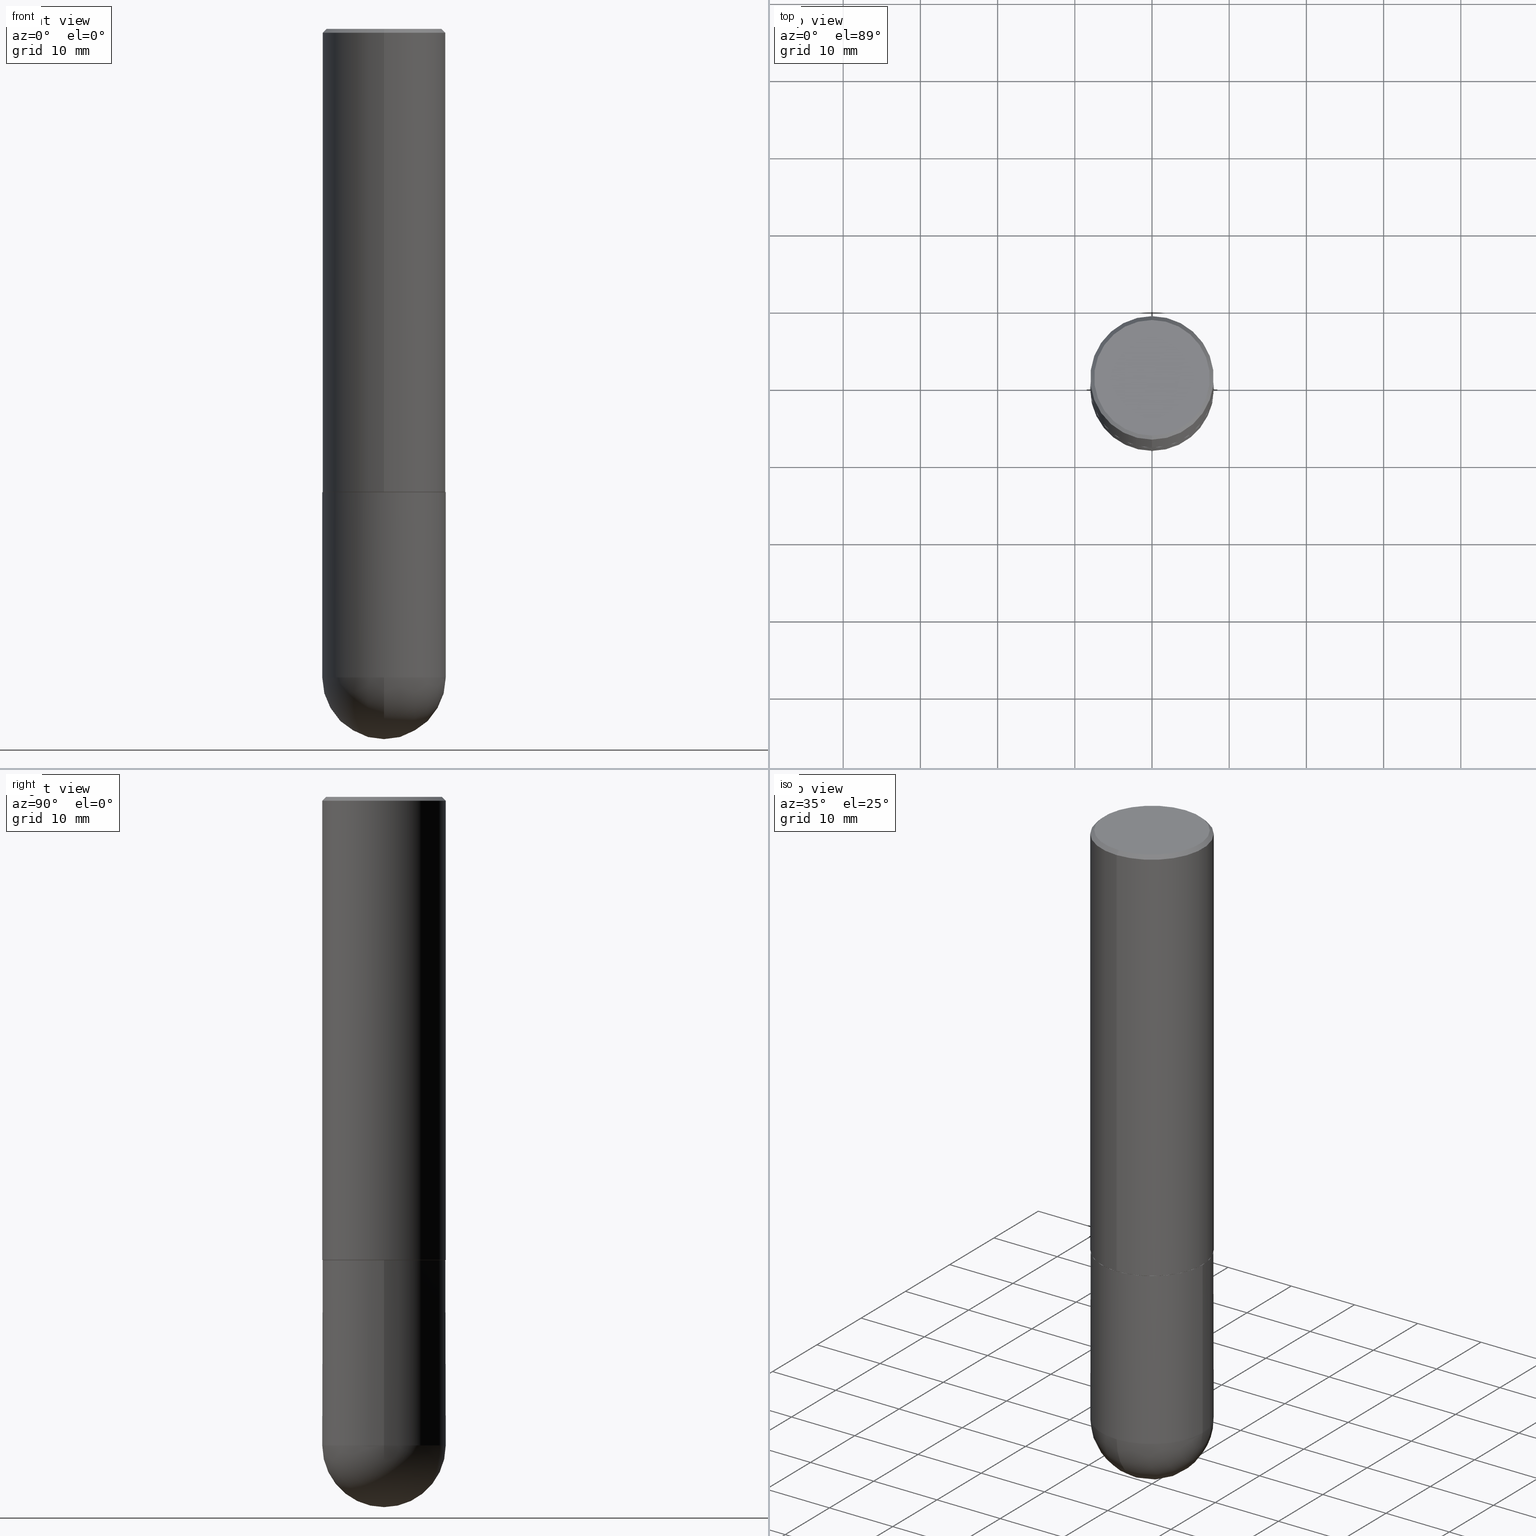
[diagram: canonical four-view strip — front | top / right | iso, engineering-drawing reading convention]
A machine part, canonical four-view strip (front | top / right | iso — engineering-drawing reading convention). The complete STEP part file that produces these views, byte-faithful:
ISO-10303-21;
HEADER;
FILE_DESCRIPTION (( 'STEP AP203' ),
    '1' );
FILE_NAME ('44578.STEP',
    '2024-04-10T11:46:05',
    ( '' ),
    ( '' ),
    'SwSTEP 2.0',
    'SolidWorks 2023',
    '' );
FILE_SCHEMA (( 'CONFIG_CONTROL_DESIGN' ));
ENDSEC;

DATA;
#1 = LENGTH_MEASURE_WITH_UNIT ( LENGTH_MEASURE( 0.02539999999999999897 ), #345 );
#2 = ADVANCED_FACE ( 'NONE', ( #8 ), #313, .T. ) ;
#3 = AXIS2_PLACEMENT_3D ( 'NONE', #151, #307, #120 ) ;
#4 = ORIENTED_EDGE ( 'NONE', *, *, #403, .T. ) ;
#5 = EDGE_CURVE ( 'NONE', #315, #9, #264, .T. ) ;
#6 = CARTESIAN_POINT ( 'NONE',  ( 7.756167837580670108E-29, -1.202068572976127498E-14, -3.307049999999999823 ) ) ;
#7 = VECTOR ( 'NONE', #119, 39.37007874015748143 ) ;
#8 = FACE_OUTER_BOUND ( 'NONE', #49, .T. ) ;
#9 = VERTEX_POINT ( 'NONE', #318 ) ;
#10 = DIRECTION ( 'NONE',  ( -6.982962677686264344E-15, -1.000000000000000000, 3.490676443567537462E-15 ) ) ;
#11 = CARTESIAN_POINT ( 'NONE',  ( -2.199284095337290265E-15, -0.3149500000000001743, 1.099388545901596591E-15 ) ) ;
#12 = EDGE_LOOP ( 'NONE', ( #291, #46 ) ) ;
#13 = DIRECTION ( 'NONE',  ( -6.982962677686265922E-15, -1.000000000000000000, 3.469564049740290009E-15 ) ) ;
#14 = AXIS2_PLACEMENT_3D ( 'NONE', #296, #85, #354 ) ;
#15 = DIRECTION ( 'NONE',  ( -2.445468806185136597E-29, 3.491481338843145583E-15, 1.000000000000000000 ) ) ;
#16 = VERTEX_POINT ( 'NONE', #195 ) ;
#17 = DIRECTION ( 'NONE',  ( -2.445468806185136877E-29, 3.491481338843145188E-15, 1.000000000000000000 ) ) ;
#18 = ORIENTED_EDGE ( 'NONE', *, *, #234, .F. ) ;
#19 = VECTOR ( 'NONE', #107, 39.37007874015748143 ) ;
#20 = ADVANCED_FACE ( 'NONE', ( #169 ), #106, .T. ) ;
#21 = SPHERICAL_SURFACE ( 'NONE', #135, 0.3149500000000001743 ) ;
#22 = CALENDAR_DATE ( 2024, 10, 4 ) ;
#23 = MECHANICAL_CONTEXT ( 'NONE', #329, 'mechanical' ) ;
#24 = CARTESIAN_POINT ( 'NONE',  ( 0.000000000000000000, 0.000000000000000000, 0.000000000000000000 ) ) ;
#25 = AXIS2_PLACEMENT_3D ( 'NONE', #174, #394, #306 ) ;
#26 = CARTESIAN_POINT ( 'NONE',  ( 4.892061723104093615E-31, -6.981352887135100316E-17, -0.02000000000000007327 ) ) ;
#27 = APPLICATION_PROTOCOL_DEFINITION ( 'international standard', 'config_control_design', 1994, #235 ) ;
#28 = CARTESIAN_POINT ( 'NONE',  ( -2.237854346276355915E-15, -0.3149500000000118871, -3.307049999999999379 ) ) ;
#29 = FACE_OUTER_BOUND ( 'NONE', #400, .T. ) ;
#30 = DIRECTION ( 'NONE',  ( -6.982962677686265922E-15, -1.000000000000000000, 3.496670018878889100E-15 ) ) ;
#31 = CARTESIAN_POINT ( 'NONE',  ( 0.000000000000000000, 0.000000000000000000, 0.000000000000000000 ) ) ;
#32 = ADVANCED_FACE ( 'NONE', ( #29 ), #92, .F. ) ;
#33 = CC_DESIGN_PERSON_AND_ORGANIZATION_ASSIGNMENT ( #412, #251, ( #276 ) ) ;
#34 = DIRECTION ( 'NONE',  ( 2.446030861552038119E-29, -3.490676443567537857E-15, -1.000000000000000000 ) ) ;
#35 = SECURITY_CLASSIFICATION ( '', '', #316 ) ;
#36 = ADVANCED_FACE ( 'NONE', ( #191 ), #158, .F. ) ;
#37 = ORIENTED_EDGE ( 'NONE', *, *, #198, .F. ) ;
#38 = CARTESIAN_POINT ( 'NONE',  ( 2.230748918918892169E-15, 0.3139499999999917912, -2.362200000000000966 ) ) ;
#39 = CIRCLE ( 'NONE', #133, 0.2949499999999998234 ) ;
#40 = CARTESIAN_POINT ( 'NONE',  ( 2.059624841783562880E-15, 0.2949499999999998234, -9.379207004238558873E-16 ) ) ;
#41 = VERTEX_POINT ( 'NONE', #130 ) ;
#42 = DIRECTION ( 'NONE',  ( -2.446030861552038119E-29, 3.490676443567537857E-15, 1.000000000000000000 ) ) ;
#43 = DIRECTION ( 'NONE',  ( 1.000000000000000000, -6.982962677686266711E-15, 4.876176775795936353E-29 ) ) ;
#44 = MANIFOLD_SOLID_BREP ( 'Body-Move/Copy2[1]', #298 ) ;
#45 = DIRECTION ( 'NONE',  ( -6.982962677686265922E-15, -1.000000000000000000, 3.496670018878889100E-15 ) ) ;
#46 = ORIENTED_EDGE ( 'NONE', *, *, #281, .T. ) ;
#47 = CC_DESIGN_APPROVAL ( #189, ( #35 ) ) ;
#48 = CARTESIAN_POINT ( 'NONE',  ( 2.129454468560426573E-15, 0.2949499999999998234, -8.462663838174674313E-16 ) ) ;
#49 = EDGE_LOOP ( 'NONE', ( #348, #241, #356, #208 ) ) ;
#50 = EDGE_CURVE ( 'NONE', #68, #315, #310, .T. ) ;
#51 = CC_DESIGN_PERSON_AND_ORGANIZATION_ASSIGNMENT ( #284, #293, ( #373 ) ) ;
#52 = PERSON ( 'UNSPECIFIED', 'UNSPECIFIED', 'UNSPECIFIED', ('UNSPECIFIED'), ('UNSPECIFIED'), ('UNSPECIFIED') ) ;
#53 = CIRCLE ( 'NONE', #67, 0.3149500000000001743 ) ;
#54 = CARTESIAN_POINT ( 'NONE',  ( 0.000000000000000000, 0.000000000000000000, 0.000000000000000000 ) ) ;
#55 =( NAMED_UNIT ( * ) SI_UNIT ( $, .STERADIAN. ) SOLID_ANGLE_UNIT ( ) );
#56 = AXIS2_PLACEMENT_3D ( 'NONE', #54, #125, #391 ) ;
#57 = DIRECTION ( 'NONE',  ( 1.000000000000000000, -6.982962677686269866E-15, 0.000000000000000000 ) ) ;
#58 = AXIS2_PLACEMENT_3D ( 'NONE', #65, #322, #102 ) ;
#59 = ORIENTED_EDGE ( 'NONE', *, *, #60, .F. ) ;
#60 = EDGE_CURVE ( 'NONE', #197, #262, #124, .T. ) ;
#61 = DIRECTION ( 'NONE',  ( -1.000000000000000000, 6.982962677686265922E-15, -4.876176775795935793E-29 ) ) ;
#62 = CALENDAR_DATE ( 2024, 10, 4 ) ;
#63 = FACE_OUTER_BOUND ( 'NONE', #246, .T. ) ;
#64 = DIRECTION ( 'NONE',  ( -2.446030861552038119E-29, 3.490676443567537857E-15, 1.000000000000000000 ) ) ;
#65 = CARTESIAN_POINT ( 'NONE',  ( 0.000000000000000000, 0.000000000000000000, 0.000000000000000000 ) ) ;
#66 = DIRECTION ( 'NONE',  ( -6.982962677686266711E-15, -1.000000000000000000, 3.480615376543096131E-15 ) ) ;
#67 = AXIS2_PLACEMENT_3D ( 'NONE', #265, #111, #325 ) ;
#68 = VERTEX_POINT ( 'NONE', #411 ) ;
#69 = DIRECTION ( 'NONE',  ( 6.982962677686265922E-15, 1.000000000000000000, -3.496670018878889100E-15 ) ) ;
#70 = SPHERICAL_SURFACE ( 'NONE', #204, 0.3149500000000001743 ) ;
#71 = ORIENTED_EDGE ( 'NONE', *, *, #132, .F. ) ;
#72 = LINE ( 'NONE', #38, #286 ) ;
#73 = EDGE_LOOP ( 'NONE', ( #305, #171, #101, #393 ) ) ;
#74 = ORIENTED_EDGE ( 'NONE', *, *, #364, .F. ) ;
#75 = ORIENTED_EDGE ( 'NONE', *, *, #50, .T. ) ;
#76 = FACE_OUTER_BOUND ( 'NONE', #116, .T. ) ;
#77 = FACE_OUTER_BOUND ( 'NONE', #230, .T. ) ;
#78 = ORIENTED_EDGE ( 'NONE', *, *, #175, .F. ) ;
#79 = AXIS2_PLACEMENT_3D ( 'NONE', #252, #283, #66 ) ;
#80 = CARTESIAN_POINT ( 'NONE',  ( 0.3149500000000000077, -2.199284095337289871E-15, 1.535751875536930130E-29 ) ) ;
#81 = DIRECTION ( 'NONE',  ( 2.446030861552037839E-29, -3.490676443567537857E-15, -1.000000000000000000 ) ) ;
#82 = EDGE_CURVE ( 'NONE', #144, #149, #210, .T. ) ;
#83 = ORIENTED_EDGE ( 'NONE', *, *, #377, .F. ) ;
#84 = DIRECTION ( 'NONE',  ( -2.446030861552038119E-29, 3.490676443567537857E-15, 1.000000000000000000 ) ) ;
#85 = DIRECTION ( 'NONE',  ( -2.445468806185136597E-29, 3.491481338843145583E-15, 1.000000000000000000 ) ) ;
#86 = CARTESIAN_POINT ( 'NONE',  ( 2.199284095337289871E-15, 0.3149499999999999522, -0.02000000000000117309 ) ) ;
#87 = PRODUCT_RELATED_PRODUCT_CATEGORY ( 'detail', '', ( #373 ) ) ;
#88 = DIRECTION ( 'NONE',  ( -2.446030861552038119E-29, 3.490676443567537857E-15, 1.000000000000000000 ) ) ;
#89 = ORIENTED_EDGE ( 'NONE', *, *, #225, .T. ) ;
#90 = CARTESIAN_POINT ( 'NONE',  ( 5.778014101158225206E-29, -8.245675894995239481E-15, -2.362200000000000077 ) ) ;
#91 = ADVANCED_FACE ( 'NONE', ( #223 ), #21, .T. ) ;
#92 = PLANE ( 'NONE',  #221 ) ;
#93 = PERSON_AND_ORGANIZATION ( #52, #336 ) ;
#94 = CARTESIAN_POINT ( 'NONE',  ( 2.237854346276435985E-15, 0.3149500000000001743, -1.099388545901596591E-15 ) ) ;
#95 = DIRECTION ( 'NONE',  ( -2.446030861552038119E-29, 3.490676443567537857E-15, 1.000000000000000000 ) ) ;
#96 = APPROVAL_STATUS ( 'not_yet_approved' ) ;
#97 = ADVANCED_FACE ( 'NONE', ( #63 ), #404, .T. ) ;
#98 = AXIS2_PLACEMENT_3D ( 'NONE', #368, #206, #45 ) ;
#99 = CARTESIAN_POINT ( 'NONE',  ( 7.756167837580670108E-29, -1.202068572976127498E-14, -3.307049999999999823 ) ) ;
#100 = COORDINATED_UNIVERSAL_TIME_OFFSET ( 5, 0, .BEHIND. ) ;
#101 = ORIENTED_EDGE ( 'NONE', *, *, #132, .T. ) ;
#102 = DIRECTION ( 'NONE',  ( -6.982962677686264344E-15, -1.000000000000000000, 3.490676443567537462E-15 ) ) ;
#103 = PERSON_AND_ORGANIZATION ( #52, #336 ) ;
#104 = ADVANCED_FACE ( 'NONE', ( #76 ), #285, .T. ) ;
#105 = FACE_OUTER_BOUND ( 'NONE', #389, .T. ) ;
#106 = CYLINDRICAL_SURFACE ( 'NONE', #58, 0.3149500000000001743 ) ;
#107 = DIRECTION ( 'NONE',  ( -4.851104656540956386E-15, -0.7071067811865489050, -0.7071067811865461294 ) ) ;
#108 = AXIS2_PLACEMENT_3D ( 'NONE', #229, #231, #69 ) ;
#109 = SHAPE_DEFINITION_REPRESENTATION ( #309, #183 ) ;
#110 = APPROVAL_PERSON_ORGANIZATION ( #167, #194, #290 ) ;
#111 = DIRECTION ( 'NONE',  ( 1.000000000000000000, -6.982962677686265922E-15, 4.883557194083112340E-29 ) ) ;
#112 = ORIENTED_EDGE ( 'NONE', *, *, #148, .F. ) ;
#113 = CARTESIAN_POINT ( 'NONE',  ( -2.160713844398143363E-15, -0.3149500000000000632, -0.01999999999999896999 ) ) ;
#114 = PLANE ( 'NONE',  #237 ) ;
#115 = CC_DESIGN_APPROVAL ( #194, ( #276 ) ) ;
#116 = EDGE_LOOP ( 'NONE', ( #152, #211, #397, #89 ) ) ;
#117 = CARTESIAN_POINT ( 'NONE',  ( -2.192301132659546270E-15, -0.3139500000000083335, -2.362199999999998745 ) ) ;
#118 = ORIENTED_EDGE ( 'NONE', *, *, #395, .T. ) ;
#119 = DIRECTION ( 'NONE',  ( 4.937700262164540154E-15, 0.7071067811865440200, -0.7071067811865510144 ) ) ;
#120 = DIRECTION ( 'NONE',  ( -6.982962677686265922E-15, -1.000000000000000000, 3.469564049740290009E-15 ) ) ;
#121 = EDGE_LOOP ( 'NONE', ( #180, #118, #18, #355 ) ) ;
#122 = DIRECTION ( 'NONE',  ( -2.446030861552038119E-29, 3.490676443567537857E-15, 1.000000000000000000 ) ) ;
#123 = CONICAL_SURFACE ( 'NONE', #257, 0.3139500000000000624, 0.7853981633973801113 ) ;
#124 = CIRCLE ( 'NONE', #401, 0.3149500000000000077 ) ;
#125 = DIRECTION ( 'NONE',  ( -2.445468806185136597E-29, 3.491481338843145583E-15, 1.000000000000000000 ) ) ;
#126 = DATE_TIME_ROLE ( 'classification_date' ) ;
#127 = AXIS2_PLACEMENT_3D ( 'NONE', #24, #64, #10 ) ;
#128 = AXIS2_PLACEMENT_3D ( 'NONE', #371, #213, #245 ) ;
#129 =( CONVERSION_BASED_UNIT ( 'INCH', #1 ) LENGTH_UNIT ( ) NAMED_UNIT ( #185 ) );
#130 = CARTESIAN_POINT ( 'NONE',  ( 2.237854346276465567E-15, 0.3149499999999920141, -2.361200000000000632 ) ) ;
#131 = DATE_AND_TIME ( #62, #339 ) ;
#132 = EDGE_CURVE ( 'NONE', #201, #197, #263, .T. ) ;
#133 = AXIS2_PLACEMENT_3D ( 'NONE', #145, #84, #153 ) ;
#134 = LOCAL_TIME ( 7, 46, 5.000000000000000000, #200 ) ;
#135 = AXIS2_PLACEMENT_3D ( 'NONE', #219, #166, #292 ) ;
#136 = ORIENTED_EDGE ( 'NONE', *, *, #281, .F. ) ;
#137 = AXIS2_PLACEMENT_3D ( 'NONE', #268, #34, #138 ) ;
#138 = DIRECTION ( 'NONE',  ( 6.982962677686265922E-15, 1.000000000000000000, -3.496670018878889100E-15 ) ) ;
#139 = CARTESIAN_POINT ( 'NONE',  ( -2.192301132659546270E-15, -0.3139500000000083335, -2.362199999999998745 ) ) ;
#140 = ORIENTED_EDGE ( 'NONE', *, *, #377, .T. ) ;
#141 = LINE ( 'NONE', #270, #7 ) ;
#142 = CARTESIAN_POINT ( 'NONE',  ( 0.000000000000000000, 0.000000000000000000, 0.000000000000000000 ) ) ;
#143 = DIRECTION ( 'NONE',  ( -4.937700262164211199E-15, -0.7071067811864968355, 0.7071067811865981989 ) ) ;
#144 = VERTEX_POINT ( 'NONE', #117 ) ;
#145 = CARTESIAN_POINT ( 'NONE',  ( -4.483785740273760110E-45, 6.398711278584033995E-31, 1.833086332127772080E-16 ) ) ;
#146 = CC_DESIGN_PERSON_AND_ORGANIZATION_ASSIGNMENT ( #93, #349, ( #233 ) ) ;
#147 = LOCAL_TIME ( 7, 46, 5.000000000000000000, #350 ) ;
#148 = EDGE_CURVE ( 'NONE', #149, #144, #188, .T. ) ;
#149 = VERTEX_POINT ( 'NONE', #212 ) ;
#150 = LINE ( 'NONE', #335, #172 ) ;
#151 = CARTESIAN_POINT ( 'NONE',  ( 5.775568070296671569E-29, -8.242185218551669522E-15, -2.361199999999999743 ) ) ;
#152 = ORIENTED_EDGE ( 'NONE', *, *, #327, .F. ) ;
#153 = DIRECTION ( 'NONE',  ( -6.982962677686265922E-15, -1.000000000000000000, 3.490676443567538251E-15 ) ) ;
#154 = ORIENTED_EDGE ( 'NONE', *, *, #248, .F. ) ;
#155 = AXIS2_PLACEMENT_3D ( 'NONE', #99, #214, #341 ) ;
#156 = EDGE_CURVE ( 'NONE', #16, #177, #150, .T. ) ;
#157 = EDGE_CURVE ( 'NONE', #308, #262, #141, .T. ) ;
#158 = PLANE ( 'NONE',  #402 ) ;
#159 = COORDINATED_UNIVERSAL_TIME_OFFSET ( 5, 0, .BEHIND. ) ;
#160 = FACE_OUTER_BOUND ( 'NONE', #260, .T. ) ;
#161 = VECTOR ( 'NONE', #399, 39.37007874015748143 ) ;
#162 = LOCAL_TIME ( 7, 46, 5.000000000000000000, #159 ) ;
#163 = DATE_AND_TIME ( #22, #370 ) ;
#164 = APPROVAL_STATUS ( 'not_yet_approved' ) ;
#165 = ORIENTED_EDGE ( 'NONE', *, *, #50, .F. ) ;
#166 = DIRECTION ( 'NONE',  ( -1.000000000000000000, 6.982962677686265133E-15, -4.883557194083112901E-29 ) ) ;
#167 = PERSON_AND_ORGANIZATION ( #52, #336 ) ;
#168 = CIRCLE ( 'NONE', #14, 0.3149500000000000077 ) ;
#169 = FACE_OUTER_BOUND ( 'NONE', #273, .T. ) ;
#170 = ORIENTED_EDGE ( 'NONE', *, *, #198, .T. ) ;
#171 = ORIENTED_EDGE ( 'NONE', *, *, #304, .T. ) ;
#172 = VECTOR ( 'NONE', #17, 39.37007874015748143 ) ;
#173 = APPROVAL_DATE_TIME ( #328, #189 ) ;
#174 = CARTESIAN_POINT ( 'NONE',  ( 5.776686413970529753E-29, -8.247577218615278049E-15, -2.362199999999999633 ) ) ;
#175 = EDGE_CURVE ( 'NONE', #367, #177, #186, .T. ) ;
#176 = DIRECTION ( 'NONE',  ( 1.000000000000000000, -6.982962677686266711E-15, 0.000000000000000000 ) ) ;
#177 = VERTEX_POINT ( 'NONE', #338 ) ;
#178 = CIRCLE ( 'NONE', #410, 0.2949499999999998234 ) ;
#179 = CC_DESIGN_DATE_AND_TIME_ASSIGNMENT ( #131, #255, ( #276 ) ) ;
#180 = ORIENTED_EDGE ( 'NONE', *, *, #82, .T. ) ;
#181 = EDGE_CURVE ( 'NONE', #308, #324, #39, .T. ) ;
#182 = CC_DESIGN_APPROVAL ( #218, ( #233 ) ) ;
#183 = ADVANCED_BREP_SHAPE_REPRESENTATION ( '44578', ( #44, #320, #407 ), #187 ) ;
#184 = LINE ( 'NONE', #228, #19 ) ;
#185 = DIMENSIONAL_EXPONENTS ( 1.000000000000000000, 0.000000000000000000, 0.000000000000000000, 0.000000000000000000, 0.000000000000000000, 0.000000000000000000, 0.000000000000000000 ) ;
#186 = CIRCLE ( 'NONE', #25, 0.3149500000000000077 ) ;
#187 =( GEOMETRIC_REPRESENTATION_CONTEXT ( 3 ) GLOBAL_UNCERTAINTY_ASSIGNED_CONTEXT ( ( #253 ) ) GLOBAL_UNIT_ASSIGNED_CONTEXT ( ( #129, #220, #55 ) ) REPRESENTATION_CONTEXT ( 'NONE', 'WORKASPACE' ) );
#188 = CIRCLE ( 'NONE', #369, 0.3139500000000000624 ) ;
#189 = APPROVAL ( #271, 'UNSPECIFIED' ) ;
#190 = PERSON_AND_ORGANIZATION ( #52, #336 ) ;
#191 = FACE_OUTER_BOUND ( 'NONE', #12, .T. ) ;
#192 = CARTESIAN_POINT ( 'NONE',  ( 2.199284095337369546E-15, 0.3149499999999882394, -3.307050000000001599 ) ) ;
#193 = APPROVAL_PERSON_ORGANIZATION ( #386, #189, #319 ) ;
#194 = APPROVAL ( #164, 'UNSPECIFIED' ) ;
#195 = CARTESIAN_POINT ( 'NONE',  ( -0.3149500000000000077, -7.659185943841817750E-15, -3.307050000000000267 ) ) ;
#196 = LINE ( 'NONE', #94, #321 ) ;
#197 = VERTEX_POINT ( 'NONE', #113 ) ;
#198 = EDGE_CURVE ( 'NONE', #9, #367, #301, .T. ) ;
#199 = ORIENTED_EDGE ( 'NONE', *, *, #234, .T. ) ;
#200 = COORDINATED_UNIVERSAL_TIME_OFFSET ( 5, 0, .BEHIND. ) ;
#201 = VERTEX_POINT ( 'NONE', #359 ) ;
#202 = AXIS2_PLACEMENT_3D ( 'NONE', #332, #42, #13 ) ;
#203 = CYLINDRICAL_SURFACE ( 'NONE', #302, 0.3149500000000000077 ) ;
#204 = AXIS2_PLACEMENT_3D ( 'NONE', #6, #242, #250 ) ;
#205 = ORIENTED_EDGE ( 'NONE', *, *, #181, .T. ) ;
#206 = DIRECTION ( 'NONE',  ( -2.446030861552038119E-29, 3.490676443567537857E-15, 1.000000000000000000 ) ) ;
#207 = CARTESIAN_POINT ( 'NONE',  ( -4.483785740273760110E-45, 6.398711278584033995E-31, 1.833086332127772080E-16 ) ) ;
#208 = ORIENTED_EDGE ( 'NONE', *, *, #157, .F. ) ;
#209 = DIRECTION ( 'NONE',  ( -6.982962677686266711E-15, -1.000000000000000000, 3.480615376543096131E-15 ) ) ;
#210 = CIRCLE ( 'NONE', #232, 0.3139500000000000624 ) ;
#211 = ORIENTED_EDGE ( 'NONE', *, *, #181, .F. ) ;
#212 = CARTESIAN_POINT ( 'NONE',  ( 2.234301632597693462E-15, 0.3139499999999917912, -2.362200000000000966 ) ) ;
#213 = DIRECTION ( 'NONE',  ( -2.445468806185136597E-29, 3.491481338843145583E-15, 1.000000000000000000 ) ) ;
#214 = DIRECTION ( 'NONE',  ( -1.000000000000000000, 7.105427357601001070E-15, -4.926315508542082329E-29 ) ) ;
#215 = APPLICATION_PROTOCOL_DEFINITION ( 'international standard', 'config_control_design', 1994, #329 ) ;
#216 = CARTESIAN_POINT ( 'NONE',  ( 2.199284095337347063E-15, 0.3149499999999917366, -2.362200000000000966 ) ) ;
#217 = DIRECTION ( 'NONE',  ( -2.445468806185136597E-29, 3.491481338843145583E-15, 1.000000000000000000 ) ) ;
#218 = APPROVAL ( #96, 'UNSPECIFIED' ) ;
#219 = CARTESIAN_POINT ( 'NONE',  ( 7.756167837580670108E-29, -1.202068572976127498E-14, -3.307049999999999823 ) ) ;
#220 =( NAMED_UNIT ( * ) PLANE_ANGLE_UNIT ( ) SI_UNIT ( $, .RADIAN. ) );
#221 = AXIS2_PLACEMENT_3D ( 'NONE', #256, #378, #408 ) ;
#222 = ADVANCED_FACE ( 'NONE', ( #334 ), #123, .T. ) ;
#223 = FACE_OUTER_BOUND ( 'NONE', #330, .T. ) ;
#224 = CALENDAR_DATE ( 2024, 10, 4 ) ;
#225 = EDGE_CURVE ( 'NONE', #262, #197, #346, .T. ) ;
#226 = DIRECTION ( 'NONE',  ( -6.982962677686266711E-15, -1.000000000000000000, 3.480615376543096131E-15 ) ) ;
#227 = PERSON_AND_ORGANIZATION_ROLE ( 'classification_officer' ) ;
#228 = CARTESIAN_POINT ( 'NONE',  ( -2.160713844398143363E-15, -0.3149500000000000632, -0.01999999999999896999 ) ) ;
#229 = CARTESIAN_POINT ( 'NONE',  ( 4.892061723104093615E-31, -6.981352887135100316E-17, -0.02000000000000007327 ) ) ;
#230 = EDGE_LOOP ( 'NONE', ( #205, #244 ) ) ;
#231 = DIRECTION ( 'NONE',  ( 2.446030861552038119E-29, -3.490676443567537857E-15, -1.000000000000000000 ) ) ;
#232 = AXIS2_PLACEMENT_3D ( 'NONE', #254, #95, #226 ) ;
#233 = PRODUCT_DEFINITION_FORMATION_WITH_SPECIFIED_SOURCE ( 'ANY', '', #373, .NOT_KNOWN. ) ;
#234 = EDGE_CURVE ( 'NONE', #201, #41, #382, .T. ) ;
#235 = APPLICATION_CONTEXT ( 'configuration controlled 3d designs of mechanical parts and assemblies' ) ;
#236 = ORIENTED_EDGE ( 'NONE', *, *, #395, .F. ) ;
#237 = AXIS2_PLACEMENT_3D ( 'NONE', #40, #81, #333 ) ;
#238 = ORIENTED_EDGE ( 'NONE', *, *, #403, .F. ) ;
#239 = ORIENTED_EDGE ( 'NONE', *, *, #148, .T. ) ;
#240 = DIRECTION ( 'NONE',  ( -2.445468806185136597E-29, 3.491481338843145583E-15, 1.000000000000000000 ) ) ;
#241 = ORIENTED_EDGE ( 'NONE', *, *, #327, .T. ) ;
#242 = DIRECTION ( 'NONE',  ( -1.000000000000000000, 6.982962677686265133E-15, -4.883557194083112901E-29 ) ) ;
#243 = VECTOR ( 'NONE', #143, 39.37007874015748143 ) ;
#244 = ORIENTED_EDGE ( 'NONE', *, *, #258, .T. ) ;
#245 = DIRECTION ( 'NONE',  ( 1.000000000000000000, -6.982962677686269866E-15, 0.000000000000000000 ) ) ;
#246 = EDGE_LOOP ( 'NONE', ( #4, #366, #78, #37, #140 ) ) ;
#247 = LINE ( 'NONE', #139, #243 ) ;
#248 = EDGE_CURVE ( 'NONE', #16, #315, #360, .T. ) ;
#249 = CC_DESIGN_DATE_AND_TIME_ASSIGNMENT ( #405, #126, ( #35 ) ) ;
#250 = DIRECTION ( 'NONE',  ( 6.982962677686265133E-15, 1.000000000000000000, -3.469564049740291586E-15 ) ) ;
#251 = PERSON_AND_ORGANIZATION_ROLE ( 'creator' ) ;
#252 = CARTESIAN_POINT ( 'NONE',  ( 5.778014101158225206E-29, -8.245675894995239481E-15, -2.362200000000000077 ) ) ;
#253 = UNCERTAINTY_MEASURE_WITH_UNIT (LENGTH_MEASURE( 1.000000000000000082E-05 ), #129, 'distance_accuracy_value', 'NONE');
#254 = CARTESIAN_POINT ( 'NONE',  ( 5.778014101158225206E-29, -8.245675894995239481E-15, -2.362200000000000077 ) ) ;
#255 = DATE_TIME_ROLE ( 'creation_date' ) ;
#256 = CARTESIAN_POINT ( 'NONE',  ( 5.778014101158224085E-29, -8.245675894995237904E-15, -2.362199999999999633 ) ) ;
#257 = AXIS2_PLACEMENT_3D ( 'NONE', #398, #122, #209 ) ;
#258 = EDGE_CURVE ( 'NONE', #324, #308, #178, .T. ) ;
#259 = COORDINATED_UNIVERSAL_TIME_OFFSET ( 5, 0, .BEHIND. ) ;
#260 = EDGE_LOOP ( 'NONE', ( #236, #239, #297, #267 ) ) ;
#261 = CC_DESIGN_PERSON_AND_ORGANIZATION_ASSIGNMENT ( #103, #227, ( #35 ) ) ;
#262 = VERTEX_POINT ( 'NONE', #86 ) ;
#263 = LINE ( 'NONE', #11, #161 ) ;
#264 = CIRCLE ( 'NONE', #372, 0.3149500000000000077 ) ;
#265 = CARTESIAN_POINT ( 'NONE',  ( 7.756167837580670108E-29, -1.202068572976127498E-14, -3.307049999999999823 ) ) ;
#266 = CLOSED_SHELL ( 'NONE', ( #222, #20, #2, #104, #357, #340, #32, #275 ) ) ;
#267 = ORIENTED_EDGE ( 'NONE', *, *, #304, .F. ) ;
#268 = CARTESIAN_POINT ( 'NONE',  ( 4.892061723104093615E-31, -6.981352887135100316E-17, -0.02000000000000007327 ) ) ;
#269 = ORIENTED_EDGE ( 'NONE', *, *, #5, .T. ) ;
#270 = CARTESIAN_POINT ( 'NONE',  ( 2.199284095337289871E-15, 0.3149499999999999522, -0.02000000000000117309 ) ) ;
#271 = APPROVAL_STATUS ( 'not_yet_approved' ) ;
#272 = CARTESIAN_POINT ( 'NONE',  ( 5.776686413970529753E-29, -8.247577218615278049E-15, -2.362199999999999633 ) ) ;
#273 = EDGE_LOOP ( 'NONE', ( #199, #385, #59, #71 ) ) ;
#274 = DIRECTION ( 'NONE',  ( -2.445468806185136877E-29, 3.491481338843145188E-15, 1.000000000000000000 ) ) ;
#275 = ADVANCED_FACE ( 'NONE', ( #77 ), #114, .F. ) ;
#276 = PRODUCT_DEFINITION ( 'UNKNOWN', '', #233, #277 ) ;
#277 = DESIGN_CONTEXT ( 'detailed design', #235, 'design' ) ;
#278 = ADVANCED_FACE ( 'NONE', ( #299 ), #203, .T. ) ;
#279 = ORIENTED_EDGE ( 'NONE', *, *, #156, .F. ) ;
#280 = VECTOR ( 'NONE', #274, 39.37007874015748143 ) ;
#281 = EDGE_CURVE ( 'NONE', #177, #367, #287, .T. ) ;
#282 = CALENDAR_DATE ( 2024, 10, 4 ) ;
#283 = DIRECTION ( 'NONE',  ( -2.446030861552038119E-29, 3.490676443567537857E-15, 1.000000000000000000 ) ) ;
#284 = PERSON_AND_ORGANIZATION ( #52, #336 ) ;
#285 = CONICAL_SURFACE ( 'NONE', #108, 0.3149500000000000077, 0.7853981633974468357 ) ;
#286 = VECTOR ( 'NONE', #331, 39.37007874015748143 ) ;
#287 = CIRCLE ( 'NONE', #361, 0.3149500000000000077 ) ;
#288 = DIRECTION ( 'NONE',  ( -2.446030861552038119E-29, 3.490676443567537857E-15, 1.000000000000000000 ) ) ;
#289 = APPROVAL_DATE_TIME ( #163, #194 ) ;
#290 = APPROVAL_ROLE ( '' ) ;
#291 = ORIENTED_EDGE ( 'NONE', *, *, #175, .T. ) ;
#292 = DIRECTION ( 'NONE',  ( 6.982962677686265133E-15, 1.000000000000000000, -3.469564049740291586E-15 ) ) ;
#293 = PERSON_AND_ORGANIZATION_ROLE ( 'design_owner' ) ;
#294 = CIRCLE ( 'NONE', #352, 0.3149500000000000077 ) ;
#295 = CALENDAR_DATE ( 2024, 10, 4 ) ;
#296 = CARTESIAN_POINT ( 'NONE',  ( 8.087287615494557476E-29, -1.154650336162122627E-14, -3.307050000000000267 ) ) ;
#297 = ORIENTED_EDGE ( 'NONE', *, *, #317, .T. ) ;
#298 = CLOSED_SHELL ( 'NONE', ( #97, #91, #374, #36, #278 ) ) ;
#299 = FACE_OUTER_BOUND ( 'NONE', #337, .T. ) ;
#300 = ORIENTED_EDGE ( 'NONE', *, *, #5, .F. ) ;
#301 = LINE ( 'NONE', #80, #280 ) ;
#302 = AXIS2_PLACEMENT_3D ( 'NONE', #142, #303, #43 ) ;
#303 = DIRECTION ( 'NONE',  ( -2.445468806185136597E-29, 3.491481338843145583E-15, 1.000000000000000000 ) ) ;
#304 = EDGE_CURVE ( 'NONE', #41, #201, #375, .T. ) ;
#305 = ORIENTED_EDGE ( 'NONE', *, *, #344, .F. ) ;
#306 = DIRECTION ( 'NONE',  ( 1.000000000000000000, -6.982962677686266711E-15, 0.000000000000000000 ) ) ;
#307 = DIRECTION ( 'NONE',  ( -2.446030861552038119E-29, 3.490676443567537857E-15, 1.000000000000000000 ) ) ;
#308 = VERTEX_POINT ( 'NONE', #48 ) ;
#309 = PRODUCT_DEFINITION_SHAPE ( 'NONE', 'NONE',  #276 ) ;
#310 = CIRCLE ( 'NONE', #155, 0.3149500000000001743 ) ;
#311 = DIRECTION ( 'NONE',  ( 1.000000000000000000, 0.000000000000000000, 0.000000000000000000 ) ) ;
#312 = DIRECTION ( 'NONE',  ( 0.000000000000000000, 0.000000000000000000, 1.000000000000000000 ) ) ;
#313 = CONICAL_SURFACE ( 'NONE', #137, 0.3149500000000000077, 0.7853981633974468357 ) ;
#314 = APPROVAL_ROLE ( '' ) ;
#315 = VERTEX_POINT ( 'NONE', #28 ) ;
#316 = SECURITY_CLASSIFICATION_LEVEL ( 'unclassified' ) ;
#317 = EDGE_CURVE ( 'NONE', #144, #201, #247, .T. ) ;
#318 = CARTESIAN_POINT ( 'NONE',  ( 0.3149500000000000077, -1.209632438545554361E-14, -3.307050000000000267 ) ) ;
#319 = APPROVAL_ROLE ( '' ) ;
#320 = MANIFOLD_SOLID_BREP ( 'Body-Move/Copy2[2]', #266 ) ;
#321 = VECTOR ( 'NONE', #379, 39.37007874015748143 ) ;
#322 = DIRECTION ( 'NONE',  ( -2.446030861552038119E-29, 3.490676443567537857E-15, 1.000000000000000000 ) ) ;
#323 = FACE_OUTER_BOUND ( 'NONE', #73, .T. ) ;
#324 = VERTEX_POINT ( 'NONE', #388 ) ;
#325 = DIRECTION ( 'NONE',  ( 6.982962677686264344E-15, 1.000000000000000000, 0.000000000000000000 ) ) ;
#326 = ORIENTED_EDGE ( 'NONE', *, *, #248, .T. ) ;
#327 = EDGE_CURVE ( 'NONE', #324, #197, #184, .T. ) ;
#328 = DATE_AND_TIME ( #295, #134 ) ;
#329 = APPLICATION_CONTEXT ( 'configuration controlled 3d designs of mechanical parts and assemblies' ) ;
#330 = EDGE_LOOP ( 'NONE', ( #74, #75, #154, #238 ) ) ;
#331 = DIRECTION ( 'NONE',  ( 5.024295867787719235E-15, 0.7071067811865017205, 0.7071067811865933139 ) ) ;
#332 = CARTESIAN_POINT ( 'NONE',  ( 5.775568070296671569E-29, -8.242185218551669522E-15, -2.361199999999999743 ) ) ;
#333 = DIRECTION ( 'NONE',  ( 6.982962677686265922E-15, 1.000000000000000000, -3.490676443567537857E-15 ) ) ;
#334 = FACE_OUTER_BOUND ( 'NONE', #121, .T. ) ;
#335 = CARTESIAN_POINT ( 'NONE',  ( -0.3149500000000000077, 2.237854346276435590E-15, -1.549218606675782676E-29 ) ) ;
#336 = ORGANIZATION ( 'UNSPECIFIED', 'UNSPECIFIED', '' ) ;
#337 = EDGE_LOOP ( 'NONE', ( #279, #326, #269, #170, #136 ) ) ;
#338 = CARTESIAN_POINT ( 'NONE',  ( -0.3149500000000000077, -7.659185943841816172E-15, -2.362199999999999633 ) ) ;
#339 = LOCAL_TIME ( 7, 46, 5.000000000000000000, #100 ) ;
#340 = ADVANCED_FACE ( 'NONE', ( #160 ), #347, .T. ) ;
#341 = DIRECTION ( 'NONE',  ( -7.105427357600999492E-15, -1.000000000000000000, 0.000000000000000000 ) ) ;
#342 = CARTESIAN_POINT ( 'NONE',  ( 8.087287615494557476E-29, -1.154650336162122627E-14, -3.307050000000000267 ) ) ;
#343 = CYLINDRICAL_SURFACE ( 'NONE', #127, 0.3149500000000001743 ) ;
#344 = EDGE_CURVE ( 'NONE', #41, #262, #196, .T. ) ;
#345 =( LENGTH_UNIT ( ) NAMED_UNIT ( * ) SI_UNIT ( $, .METRE. ) );
#346 = CIRCLE ( 'NONE', #98, 0.3149500000000000077 ) ;
#347 = CONICAL_SURFACE ( 'NONE', #79, 0.3139500000000000624, 0.7853981633973801113 ) ;
#348 = ORIENTED_EDGE ( 'NONE', *, *, #258, .F. ) ;
#349 = PERSON_AND_ORGANIZATION_ROLE ( 'creator' ) ;
#350 = COORDINATED_UNIVERSAL_TIME_OFFSET ( 5, 0, .BEHIND. ) ;
#351 = DIRECTION ( 'NONE',  ( 1.000000000000000000, -6.982962677686269866E-15, 0.000000000000000000 ) ) ;
#352 = AXIS2_PLACEMENT_3D ( 'NONE', #342, #217, #57 ) ;
#353 = CARTESIAN_POINT ( 'NONE',  ( 0.3149500000000000077, -1.044686131395256792E-14, -2.362199999999999633 ) ) ;
#354 = DIRECTION ( 'NONE',  ( 1.000000000000000000, -6.982962677686269866E-15, 0.000000000000000000 ) ) ;
#355 = ORIENTED_EDGE ( 'NONE', *, *, #317, .F. ) ;
#356 = ORIENTED_EDGE ( 'NONE', *, *, #60, .T. ) ;
#357 = ADVANCED_FACE ( 'NONE', ( #323 ), #343, .T. ) ;
#358 = VERTEX_POINT ( 'NONE', #192 ) ;
#359 = CARTESIAN_POINT ( 'NONE',  ( -2.199284095337233467E-15, -0.3149500000000085564, -2.361199999999998411 ) ) ;
#360 = CIRCLE ( 'NONE', #128, 0.3149500000000000077 ) ;
#361 = AXIS2_PLACEMENT_3D ( 'NONE', #272, #15, #176 ) ;
#362 = DIRECTION ( 'NONE',  ( -6.982962677686265922E-15, -1.000000000000000000, 3.490676443567538251E-15 ) ) ;
#363 = DIRECTION ( 'NONE',  ( -6.982962677686266711E-15, -1.000000000000000000, 3.480615376543096131E-15 ) ) ;
#364 = EDGE_CURVE ( 'NONE', #68, #358, #53, .T. ) ;
#365 = DIRECTION ( 'NONE',  ( -2.446030861552038119E-29, 3.490676443567537857E-15, 1.000000000000000000 ) ) ;
#366 = ORIENTED_EDGE ( 'NONE', *, *, #156, .T. ) ;
#367 = VERTEX_POINT ( 'NONE', #353 ) ;
#368 = CARTESIAN_POINT ( 'NONE',  ( 4.892061723104093615E-31, -6.981352887135100316E-17, -0.02000000000000007327 ) ) ;
#369 = AXIS2_PLACEMENT_3D ( 'NONE', #90, #88, #363 ) ;
#370 = LOCAL_TIME ( 7, 46, 5.000000000000000000, #259 ) ;
#371 = CARTESIAN_POINT ( 'NONE',  ( 8.087287615494557476E-29, -1.154650336162122627E-14, -3.307050000000000267 ) ) ;
#372 = AXIS2_PLACEMENT_3D ( 'NONE', #392, #240, #351 ) ;
#373 = PRODUCT ( '44578', '44578', '', ( #23 ) ) ;
#374 = ADVANCED_FACE ( 'NONE', ( #105 ), #70, .T. ) ;
#375 = CIRCLE ( 'NONE', #3, 0.3149500000000002853 ) ;
#376 = DATE_AND_TIME ( #224, #162 ) ;
#377 = EDGE_CURVE ( 'NONE', #9, #358, #168, .T. ) ;
#378 = DIRECTION ( 'NONE',  ( -2.446030861552037839E-29, 3.490676443567537857E-15, 1.000000000000000000 ) ) ;
#379 = DIRECTION ( 'NONE',  ( -2.446030861552038400E-29, 3.490676443567537857E-15, 1.000000000000000000 ) ) ;
#380 = PERSON_AND_ORGANIZATION ( #52, #336 ) ;
#381 = DIRECTION ( 'NONE',  ( 2.438088387897960049E-29, -3.491481338843145188E-15, -1.000000000000000000 ) ) ;
#382 = CIRCLE ( 'NONE', #202, 0.3149500000000002853 ) ;
#383 = ORIENTED_EDGE ( 'NONE', *, *, #364, .T. ) ;
#384 = PERSON_AND_ORGANIZATION_ROLE ( 'design_supplier' ) ;
#385 = ORIENTED_EDGE ( 'NONE', *, *, #344, .T. ) ;
#386 = PERSON_AND_ORGANIZATION ( #52, #336 ) ;
#387 = ORIENTED_EDGE ( 'NONE', *, *, #82, .F. ) ;
#388 = CARTESIAN_POINT ( 'NONE',  ( -2.092108864420427637E-15, -0.2949499999999998234, 1.212883650243022044E-15 ) ) ;
#389 = EDGE_LOOP ( 'NONE', ( #165, #383, #83, #300 ) ) ;
#390 = CC_DESIGN_SECURITY_CLASSIFICATION ( #35, ( #233 ) ) ;
#391 = DIRECTION ( 'NONE',  ( 1.000000000000000000, -6.982962677686266711E-15, 4.876176775795936353E-29 ) ) ;
#392 = CARTESIAN_POINT ( 'NONE',  ( 8.087287615494557476E-29, -1.154650336162122627E-14, -3.307050000000000267 ) ) ;
#393 = ORIENTED_EDGE ( 'NONE', *, *, #225, .F. ) ;
#394 = DIRECTION ( 'NONE',  ( -2.445468806185136597E-29, 3.491481338843145583E-15, 1.000000000000000000 ) ) ;
#395 = EDGE_CURVE ( 'NONE', #149, #41, #72, .T. ) ;
#396 = APPROVAL_PERSON_ORGANIZATION ( #380, #218, #314 ) ;
#397 = ORIENTED_EDGE ( 'NONE', *, *, #157, .T. ) ;
#398 = CARTESIAN_POINT ( 'NONE',  ( 5.778014101158225206E-29, -8.245675894995239481E-15, -2.362200000000000077 ) ) ;
#399 = DIRECTION ( 'NONE',  ( -2.446030861552038400E-29, 3.490676443567537857E-15, 1.000000000000000000 ) ) ;
#400 = EDGE_LOOP ( 'NONE', ( #387, #112 ) ) ;
#401 = AXIS2_PLACEMENT_3D ( 'NONE', #26, #288, #30 ) ;
#402 = AXIS2_PLACEMENT_3D ( 'NONE', #216, #381, #61 ) ;
#403 = EDGE_CURVE ( 'NONE', #358, #16, #294, .T. ) ;
#404 = CYLINDRICAL_SURFACE ( 'NONE', #56, 0.3149500000000000077 ) ;
#405 = DATE_AND_TIME ( #282, #147 ) ;
#406 = CC_DESIGN_PERSON_AND_ORGANIZATION_ASSIGNMENT ( #190, #384, ( #233 ) ) ;
#407 = AXIS2_PLACEMENT_3D ( 'NONE', #31, #312, #311 ) ;
#408 = DIRECTION ( 'NONE',  ( -6.982962677686265922E-15, -1.000000000000000000, 3.490676443567537857E-15 ) ) ;
#409 = APPROVAL_DATE_TIME ( #376, #218 ) ;
#410 = AXIS2_PLACEMENT_3D ( 'NONE', #207, #365, #362 ) ;
#411 = CARTESIAN_POINT ( 'NONE',  ( 8.539834969227531055E-29, -1.310104265196035002E-14, -3.621999999999999886 ) ) ;
#412 = PERSON_AND_ORGANIZATION ( #52, #336 ) ;
ENDSEC;
END-ISO-10303-21;
